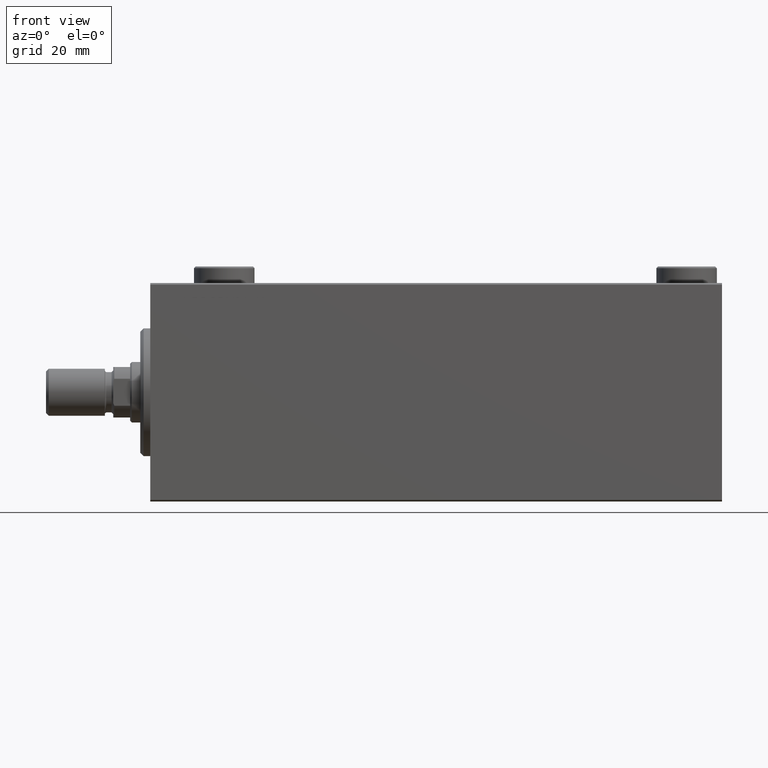
[diagram: clean part render]
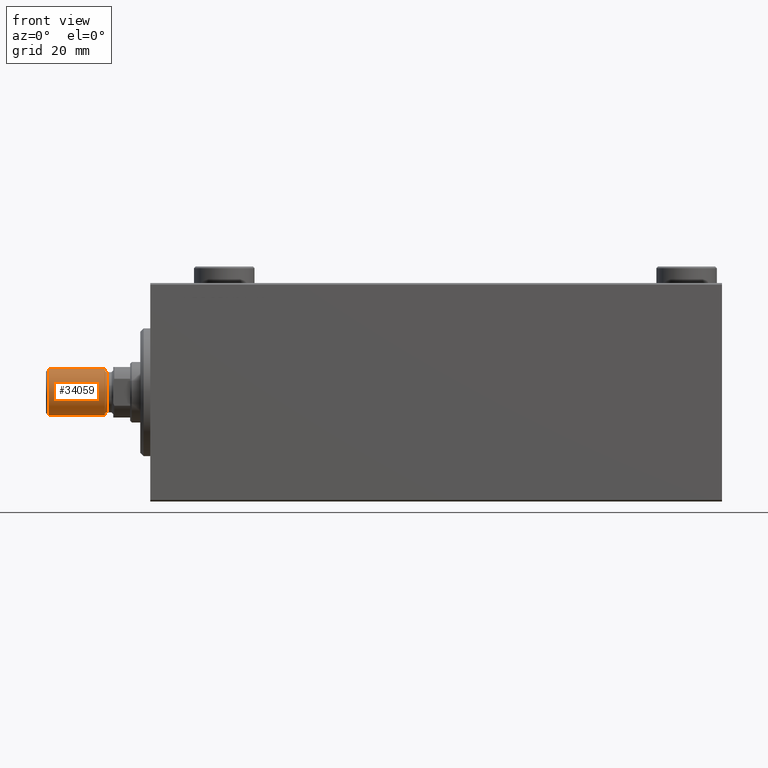
[diagram: same view with one face highlighted and labeled with its STEP entity id]
A machine part, front view. The second image highlights one B-rep face of the part: STEP entity #34059.
In plain terms, the highlighted cylindrical surface (edge-blend (fillet) strip) has radius 7 mm, axis along (-1, -0, 0).
Its self-contained STEP definition (entity closure, byte-faithful):
#562 = ORIENTED_EDGE ( 'NONE', *, *, #36980, .T. ) ;
#1671 = DIRECTION ( 'NONE',  ( -0.000000000000000000, -0.000000000000000000, 1.000000000000000000 ) ) ;
#2116 = DIRECTION ( 'NONE',  ( 1.000000000000000000, 0.000000000000000000, 0.000000000000000000 ) ) ;
#2300 = DIRECTION ( 'NONE',  ( 1.000000000000000000, 0.000000000000000000, 0.000000000000000000 ) ) ;
#3912 = VERTEX_POINT ( 'NONE', #24932 ) ;
#4057 = AXIS2_PLACEMENT_3D ( 'NONE', #8608, #26285, #2300 ) ;
#5580 = FACE_OUTER_BOUND ( 'NONE', #8243, .T. ) ;
#8243 = EDGE_LOOP ( 'NONE', ( #36622, #35316, #43637, #562 ) ) ;
#8252 = EDGE_CURVE ( 'NONE', #3912, #45885, #34746, .T. ) ;
#8608 = CARTESIAN_POINT ( 'NONE',  ( 0.000000000000000000, 0.000000000000000000, 17.50000000000000000 ) ) ;
#9332 = LINE ( 'NONE', #27008, #26150 ) ;
#9406 = CARTESIAN_POINT ( 'NONE',  ( -7.000000000000000000, 0.000000000000000000, 17.50000000000000000 ) ) ;
#10298 = CARTESIAN_POINT ( 'NONE',  ( 7.000000000000000000, 8.572527594031473190E-16, 0.7999999999999986011 ) ) ;
#12440 = DIRECTION ( 'NONE',  ( -0.000000000000000000, -0.000000000000000000, -1.000000000000000000 ) ) ;
#12566 = CYLINDRICAL_SURFACE ( 'NONE', #16763, 7.000000000000000000 ) ;
#14185 = VERTEX_POINT ( 'NONE', #32505 ) ;
#14974 = VECTOR ( 'NONE', #12440, 1000.000000000000000 ) ;
#14982 = EDGE_CURVE ( 'NONE', #3912, #14185, #42713, .T. ) ;
#16763 = AXIS2_PLACEMENT_3D ( 'NONE', #36985, #33730, #26762 ) ;
#19353 = CARTESIAN_POINT ( 'NONE',  ( 0.000000000000000000, 0.000000000000000000, 0.7999999999999986011 ) ) ;
#20127 = EDGE_CURVE ( 'NONE', #14185, #22606, #9332, .T. ) ;
#20535 = CARTESIAN_POINT ( 'NONE',  ( -7.000000000000000000, 0.000000000000000000, 0.7999999999999986011 ) ) ;
#22606 = VERTEX_POINT ( 'NONE', #10298 ) ;
#24932 = CARTESIAN_POINT ( 'NONE',  ( -7.000000000000000000, 0.000000000000000000, 17.50000000000000000 ) ) ;
#26150 = VECTOR ( 'NONE', #34901, 1000.000000000000000 ) ;
#26285 = DIRECTION ( 'NONE',  ( 0.000000000000000000, 0.000000000000000000, 1.000000000000000000 ) ) ;
#26762 = DIRECTION ( 'NONE',  ( -1.000000000000000000, 0.000000000000000000, 0.000000000000000000 ) ) ;
#27008 = CARTESIAN_POINT ( 'NONE',  ( 7.000000000000000000, 8.572527594031473190E-16, 17.50000000000000000 ) ) ;
#32505 = CARTESIAN_POINT ( 'NONE',  ( 7.000000000000000000, 8.572527594031473190E-16, 17.50000000000000000 ) ) ;
#33730 = DIRECTION ( 'NONE',  ( -0.000000000000000000, -0.000000000000000000, -1.000000000000000000 ) ) ;
#34059 = ADVANCED_FACE ( 'NONE', ( #5580 ), #12566, .T. ) ;
#34669 = CIRCLE ( 'NONE', #35409, 7.000000000000000000 ) ;
#34746 = LINE ( 'NONE', #9406, #14974 ) ;
#34901 = DIRECTION ( 'NONE',  ( -0.000000000000000000, -0.000000000000000000, -1.000000000000000000 ) ) ;
#35316 = ORIENTED_EDGE ( 'NONE', *, *, #14982, .F. ) ;
#35409 = AXIS2_PLACEMENT_3D ( 'NONE', #19353, #1671, #2116 ) ;
#36622 = ORIENTED_EDGE ( 'NONE', *, *, #20127, .F. ) ;
#36980 = EDGE_CURVE ( 'NONE', #45885, #22606, #34669, .T. ) ;
#36985 = CARTESIAN_POINT ( 'NONE',  ( 0.000000000000000000, 0.000000000000000000, 17.50000000000000000 ) ) ;
#42713 = CIRCLE ( 'NONE', #4057, 7.000000000000000000 ) ;
#43637 = ORIENTED_EDGE ( 'NONE', *, *, #8252, .T. ) ;
#45885 = VERTEX_POINT ( 'NONE', #20535 ) ;